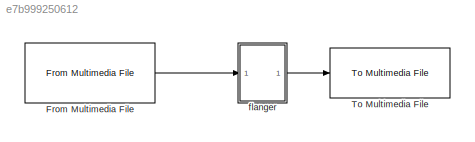
MODEL slx_e7b999250612
KIND model
CONFIG AbsTol = auto
CONFIG EnableMultiTasking = off
CONFIG FixedStep = auto
CONFIG MaxStep = auto
CONFIG MinStep = auto
CONFIG RelTol = 1e-3
CONFIG SampleTimeConstraint = Unconstrained
CONFIG Solver = VariableStepAuto
CONFIG SolverName = VariableStepAuto
CONFIG StartTime = 0.0
CONFIG StopTime = 10.0
BLOCK [Reference] From Multimedia File  REF=dspvision/From Multimedia File
  Ports = [0, 1]
  SourceBlock = dspvision/From Multimedia File
  SourceProductBaseCode = VP
  SourceProductName = Computer Vision System Toolbox
  SourceType = From Multimedia File
BLOCK [Reference] To Multimedia File  REF=dspvision/To Multimedia File
  Ports = [1]
  SourceBlock = dspvision/To Multimedia File
  SourceProductBaseCode = VP
  SourceProductName = Computer Vision System Toolbox
  SourceType = To Multimedia File
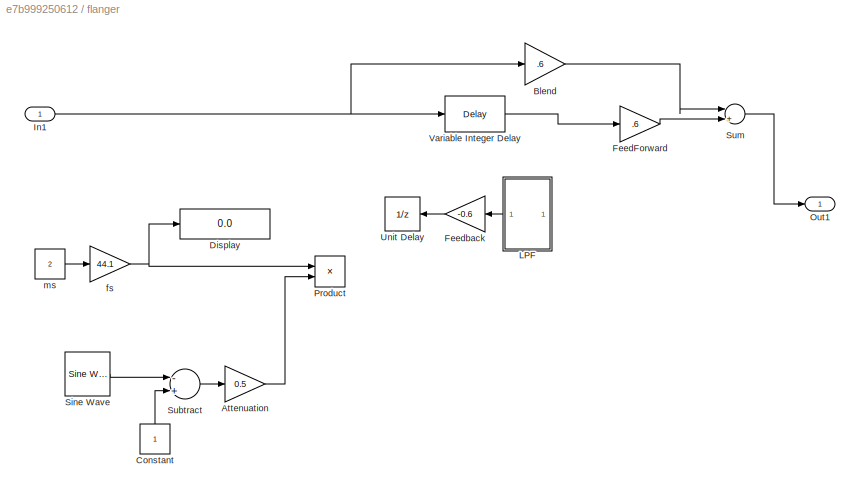
BLOCK [SubSystem] flanger
  Ports = [1, 1]
  RequestExecContextInheritance = off
BLOCK [Gain] flanger/Attenuation
  Commented = on
  Gain = 0.5
  OutDataTypeStr = int16
  ParamDataTypeStr = int16
  RndMeth = Round
  SaturateOnIntegerOverflow = off
BLOCK [Gain] flanger/Blend
  Gain = .6
  OutDataTypeStr = int16
  ParamDataTypeStr = int16
  SaturateOnIntegerOverflow = off
BLOCK [Constant] flanger/Constant
  Commented = on
  OutDataTypeStr = int16
BLOCK [Display] flanger/Display
  Commented = on
  Decimation = 1
  Ports = [1]
BLOCK [Gain] flanger/FeedForward
  Gain = .6
  OutDataTypeStr = int16
  ParamDataTypeStr = Inherit: Inherit via internal rule
  SaturateOnIntegerOverflow = off
BLOCK [Gain] flanger/Feedback
  Commented = on
  Gain = -0.6
  OutDataTypeStr = int16
  ParamDataTypeStr = int16
  SaturateOnIntegerOverflow = off
BLOCK [Inport] flanger/In1
  IconDisplay = Port number
  SampleTime = 44100
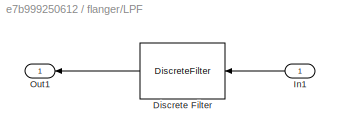
BLOCK [SubSystem] flanger/LPF
  Commented = on
  Ports = [1, 1]
  RequestExecContextInheritance = off
BLOCK [DiscreteFilter] flanger/LPF/Discrete Filter
  Denominator = [1 0]
  FilterStructure = Direct form II transposed
  InputPortMap = u0
  InputProcessing = Columns as channels (frame based)
  Numerator = [.5 .5]
  OutDataTypeStr = Inherit: Same as input
  Ports = [1, 1]
  SampleTime = 44100
  a0EqualsOne = on
BLOCK [Inport] flanger/LPF/In1
  IconDisplay = Port number
BLOCK [Outport] flanger/LPF/Out1
  IconDisplay = Port number
BLOCK [Outport] flanger/Out1
  IconDisplay = Port number
BLOCK [Product] flanger/Product
  Commented = on
  InputSameDT = off
  OutDataTypeStr = int16
  Ports = [2, 1]
  RndMeth = Round
  SaturateOnIntegerOverflow = off
BLOCK [Reference] flanger/Sine Wave  REF=dspsrcs4/Sine Wave
  Commented = on
  Ports = [0, 1]
  SourceBlock = dspsrcs4/Sine Wave
  SourceProductBaseCode = DS
  SourceProductName = DSP System Toolbox
  SourceType = Sine Wave
BLOCK [Sum] flanger/Subtract
  AccumDataTypeStr = int16
  Commented = on
  InputSameDT = off
  Inputs = -+
  OutDataTypeStr = int16
  Ports = [2, 1]
  RndMeth = Round
  SaturateOnIntegerOverflow = off
BLOCK [Sum] flanger/Sum
  AccumDataTypeStr = int16
  InputSameDT = off
  Inputs = |++
  OutDataTypeStr = Inherit: Inherit via internal rule
  Ports = [2, 1]
  SaturateOnIntegerOverflow = off
BLOCK [UnitDelay] flanger/Unit Delay
  Commented = on
  InputProcessing = Columns as channels (frame based)
  SampleTime = 44100
BLOCK [Delay] flanger/Variable Integer Delay
  DelayLength = 80
  InputPortMap = u0
  InputProcessing = Columns as channels (frame based)
  Ports = [1, 1]
  SampleTime = 44100
BLOCK [Gain] flanger/fs
  Commented = on
  Gain = 44.1
  OutDataTypeStr = Inherit: Inherit via internal rule
  ParamDataTypeStr = Inherit: Inherit via internal rule
  SaturateOnIntegerOverflow = off
BLOCK [Constant] flanger/ms
  Commented = on
  OutDataTypeStr = int16
  Value = 2
LINE From Multimedia File:1 -> flanger:1
LINE flanger/Attenuation:1 -> flanger/Product:2
LINE flanger/Blend:1 -> flanger/Sum:1
LINE flanger/Constant:1 -> flanger/Subtract:2
LINE flanger/FeedForward:1 -> flanger/Sum:2
LINE flanger/Feedback:1 -> flanger/Unit Delay:1
NET flanger/In1:1 -> flanger/Blend:1, flanger/Variable Integer Delay:1
LINE flanger/LPF/Discrete Filter:1 -> flanger/LPF/Out1:1
LINE flanger/LPF/In1:1 -> flanger/LPF/Discrete Filter:1
LINE flanger/LPF:1 -> flanger/Feedback:1
LINE flanger/Sine Wave:1 -> flanger/Subtract:1
LINE flanger/Subtract:1 -> flanger/Attenuation:1
LINE flanger/Sum:1 -> flanger/Out1:1
LINE flanger/Variable Integer Delay:1 -> flanger/FeedForward:1
NET flanger/fs:1 -> flanger/Display:1, flanger/Product:1
LINE flanger/ms:1 -> flanger/fs:1
LINE flanger:1 -> To Multimedia File:1
note: NET lines group one-source signal fan-out (src -> all destinations, sorted); 1:1 wires keep LINE
